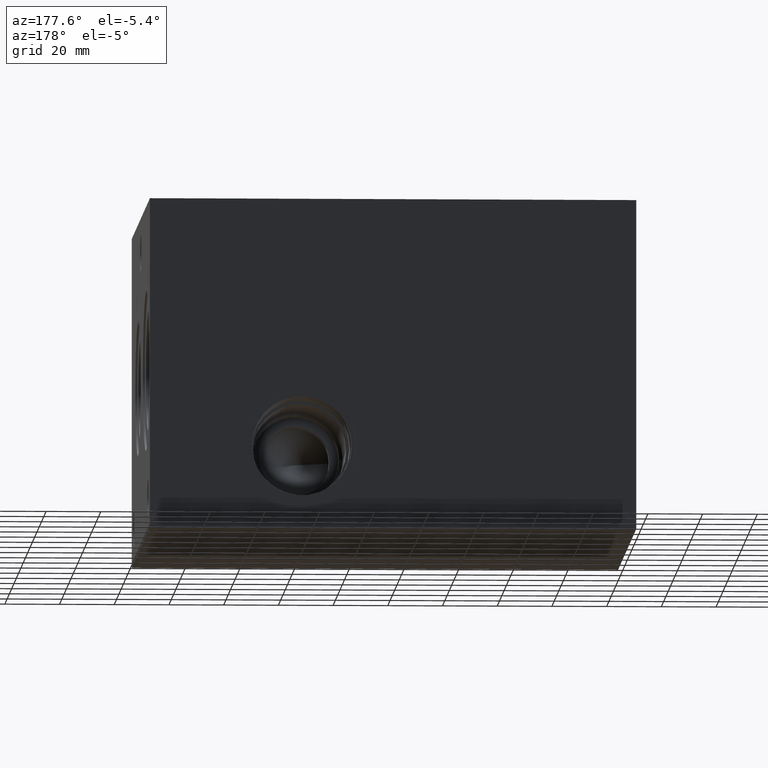
[diagram: clean part render]
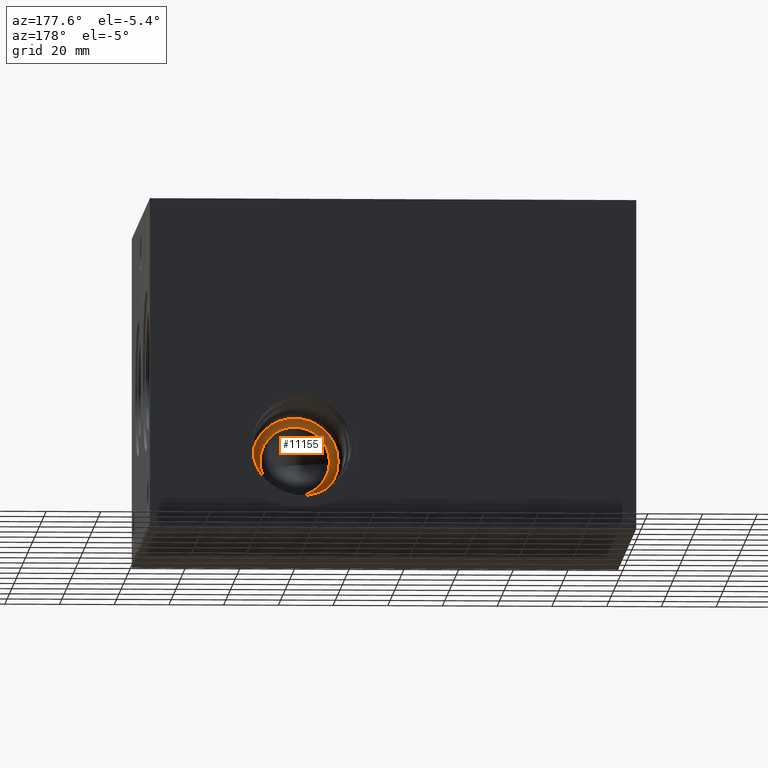
[diagram: same view with one face highlighted and labeled with its STEP entity id]
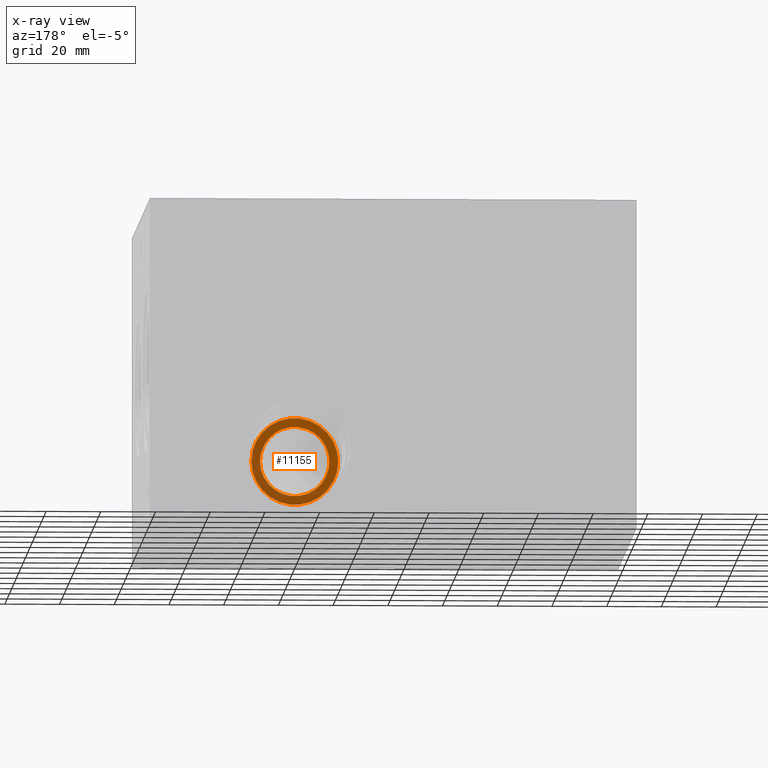
[diagram: x-ray of the same camera — body ghosted, the highlighted face saturated]
A machine part, auxiliary view. The second image highlights one B-rep face of the part: STEP entity #11155.
The next image is the same camera in x-ray: the body ghosted, the highlighted face saturated — about 34% of this face is hidden behind the body in this view.
In plain terms, the highlighted planar face has unit normal (0, -1, 0).
Its self-contained STEP definition (entity closure, byte-faithful):
#180=CIRCLE('',#11683,15.875);
#181=CIRCLE('',#11684,15.875);
#182=CIRCLE('',#11686,12.7);
#183=CIRCLE('',#11687,12.7);
#465=FACE_BOUND('',#1910,.T.);
#1272=FACE_OUTER_BOUND('',#1909,.T.);
#1909=EDGE_LOOP('',(#9215,#9216));
#1910=EDGE_LOOP('',(#9217,#9218));
#5038=VERTEX_POINT('',#18513);
#5039=VERTEX_POINT('',#18515);
#5040=VERTEX_POINT('',#18519);
#5041=VERTEX_POINT('',#18520);
#6504=EDGE_CURVE('',#5038,#5039,#180,.T.);
#6505=EDGE_CURVE('',#5039,#5038,#181,.T.);
#6506=EDGE_CURVE('',#5040,#5041,#182,.T.);
#6507=EDGE_CURVE('',#5041,#5040,#183,.T.);
#9215=ORIENTED_EDGE('',*,*,#6505,.F.);
#9216=ORIENTED_EDGE('',*,*,#6504,.F.);
#9217=ORIENTED_EDGE('',*,*,#6506,.T.);
#9218=ORIENTED_EDGE('',*,*,#6507,.T.);
#10277=PLANE('',#11685);
#11155=ADVANCED_FACE('',(#1272,#465),#10277,.F.);
#11683=AXIS2_PLACEMENT_3D('',#18516,#13738,#13739);
#11684=AXIS2_PLACEMENT_3D('',#18517,#13740,#13741);
#11685=AXIS2_PLACEMENT_3D('',#18518,#13742,#13743);
#11686=AXIS2_PLACEMENT_3D('',#18521,#13744,#13745);
#11687=AXIS2_PLACEMENT_3D('',#18522,#13746,#13747);
#13738=DIRECTION('center_axis',(0.,-1.,0.));
#13739=DIRECTION('ref_axis',(1.,0.,0.));
#13740=DIRECTION('center_axis',(0.,-1.,0.));
#13741=DIRECTION('ref_axis',(1.,0.,0.));
#13742=DIRECTION('center_axis',(0.,-1.,0.));
#13743=DIRECTION('ref_axis',(0.,0.,-1.));
#13744=DIRECTION('center_axis',(0.,-1.,0.));
#13745=DIRECTION('ref_axis',(1.,0.,0.));
#13746=DIRECTION('center_axis',(0.,-1.,0.));
#13747=DIRECTION('ref_axis',(1.,0.,0.));
#18513=CARTESIAN_POINT('',(106.3498,95.7072,30.1752));
#18515=CARTESIAN_POINT('',(138.0998,95.7072,30.1752));
#18516=CARTESIAN_POINT('Origin',(122.2248,95.7072,30.1752));
#18517=CARTESIAN_POINT('Origin',(122.2248,95.7072,30.1752));
#18518=CARTESIAN_POINT('Origin',(134.9248,95.7072,30.1752));
#18519=CARTESIAN_POINT('',(134.9248,95.7072,30.1752));
#18520=CARTESIAN_POINT('',(109.5248,95.7072,30.1752));
#18521=CARTESIAN_POINT('Origin',(122.2248,95.7072,30.1752));
#18522=CARTESIAN_POINT('Origin',(122.2248,95.7072,30.1752));